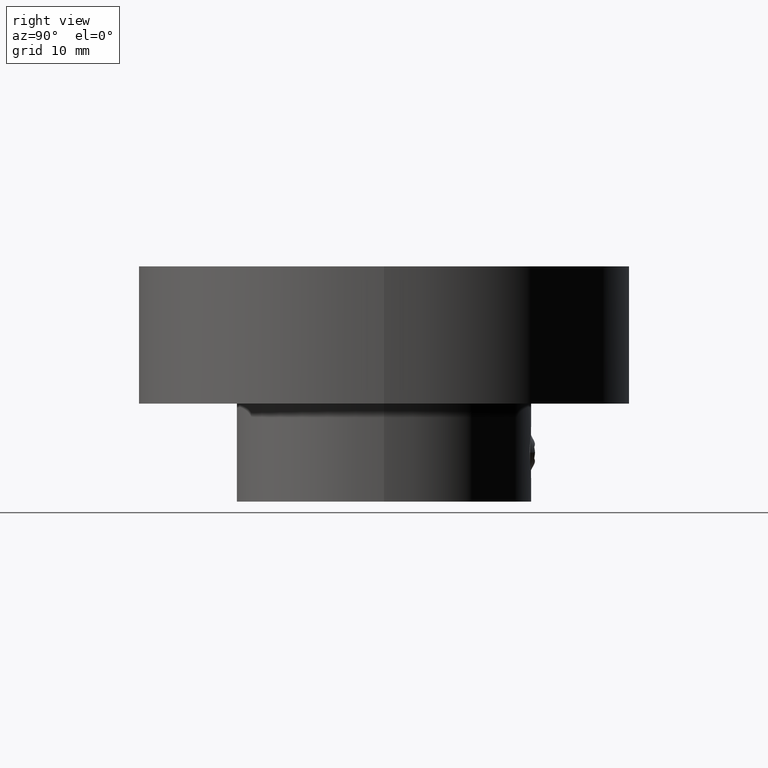
[diagram: clean part render]
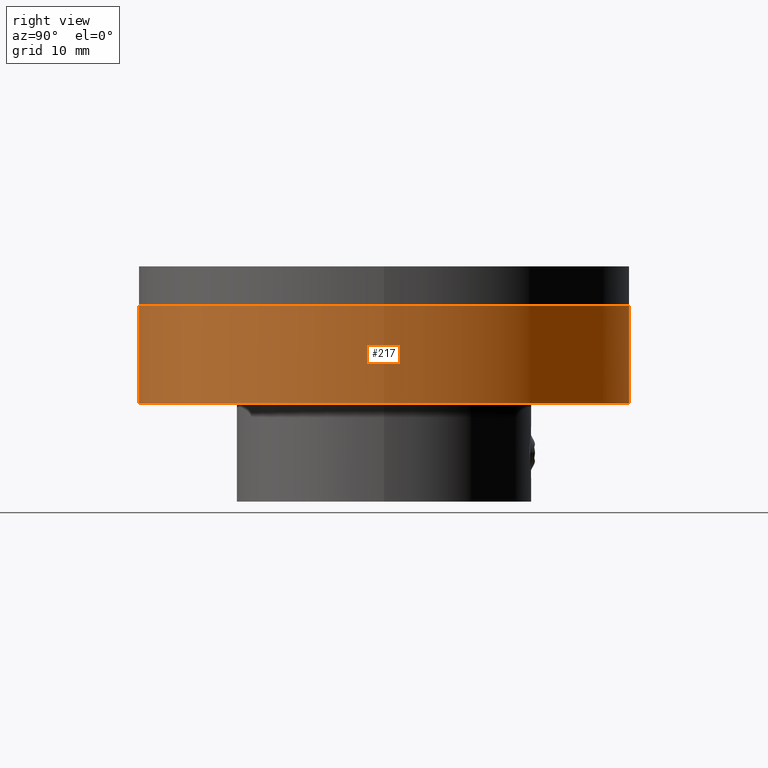
[diagram: same view with one face highlighted and labeled with its STEP entity id]
A machine part, right view. The second image highlights one B-rep face of the part: STEP entity #217.
In plain terms, the highlighted cylindrical surface (bore or boss wall) has radius 25 mm, axis along (-0, 0, -1).
Its self-contained STEP definition (entity closure, byte-faithful):
#217 = ADVANCED_FACE( '', ( #250, #251 ), #252, .T. );
#250 = FACE_OUTER_BOUND( '', #322, .T. );
#251 = FACE_OUTER_BOUND( '', #323, .T. );
#252 = CYLINDRICAL_SURFACE( '', #324, 25.0000000000000 );
#322 = EDGE_LOOP( '', ( #399 ) );
#323 = EDGE_LOOP( '', ( #400 ) );
#324 = AXIS2_PLACEMENT_3D( '', #401, #402, #403 );
#399 = ORIENTED_EDGE( '', *, *, #568, .T. );
#400 = ORIENTED_EDGE( '', *, *, #569, .F. );
#401 = CARTESIAN_POINT( '', ( 0.000000000000000, 0.000000000000000, -24.0000000000000 ) );
#402 = DIRECTION( '', ( -0.000000000000000, 0.000000000000000, -1.00000000000000 ) );
#403 = DIRECTION( '', ( -1.00000000000000, 0.000000000000000, 0.000000000000000 ) );
#568 = EDGE_CURVE( '', #619, #619, #620, .T. );
#569 = EDGE_CURVE( '', #621, #621, #622, .T. );
#619 = VERTEX_POINT( '', #701 );
#620 = CIRCLE( '', #702, 25.0000000000000 );
#621 = VERTEX_POINT( '', #703 );
#622 = CIRCLE( '', #704, 25.0000000000000 );
#701 = CARTESIAN_POINT( '', ( 25.0000000000000, 0.000000000000000, -24.0000000000000 ) );
#702 = AXIS2_PLACEMENT_3D( '', #936, #937, #938 );
#703 = CARTESIAN_POINT( '', ( 25.0000000000000, 0.000000000000000, -14.0000000000000 ) );
#704 = AXIS2_PLACEMENT_3D( '', #939, #940, #941 );
#936 = CARTESIAN_POINT( '', ( 0.000000000000000, 0.000000000000000, -24.0000000000000 ) );
#937 = DIRECTION( '', ( 0.000000000000000, -0.000000000000000, 1.00000000000000 ) );
#938 = DIRECTION( '', ( 1.00000000000000, 0.000000000000000, 0.000000000000000 ) );
#939 = CARTESIAN_POINT( '', ( 0.000000000000000, 0.000000000000000, -14.0000000000000 ) );
#940 = DIRECTION( '', ( 0.000000000000000, -0.000000000000000, 1.00000000000000 ) );
#941 = DIRECTION( '', ( 1.00000000000000, 0.000000000000000, 0.000000000000000 ) );